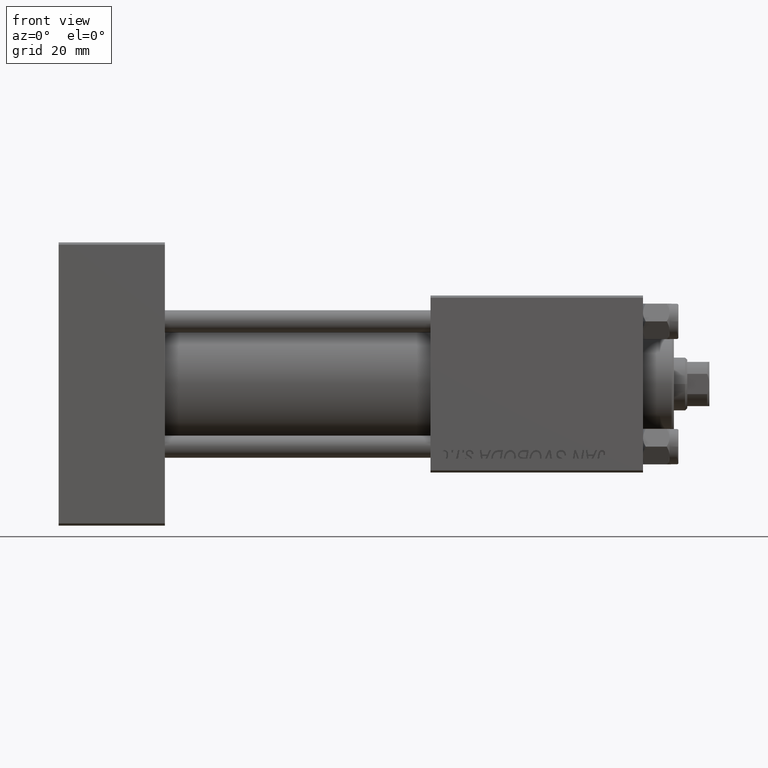
[diagram: clean part render]
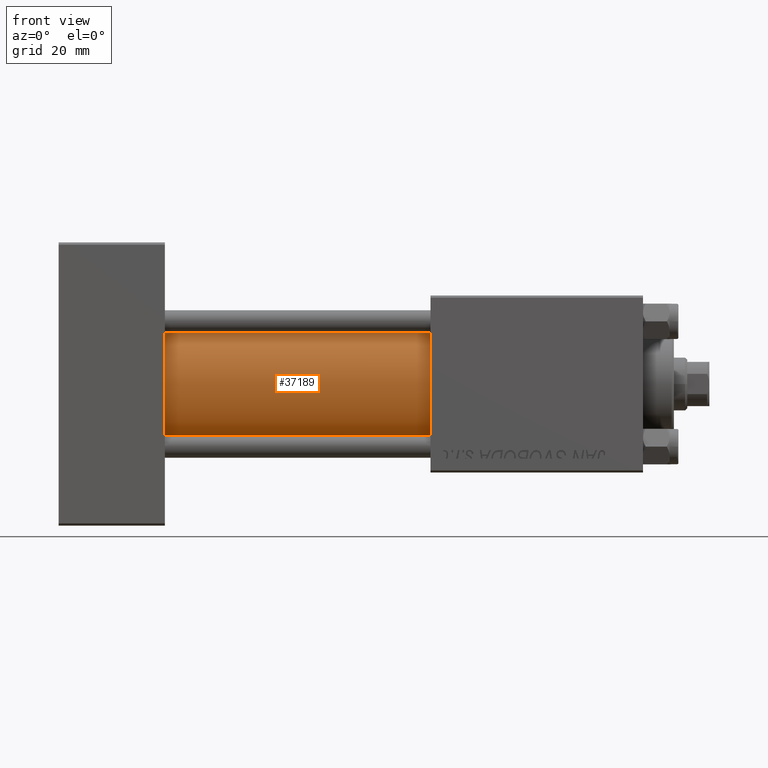
[diagram: same view with one face highlighted and labeled with its STEP entity id]
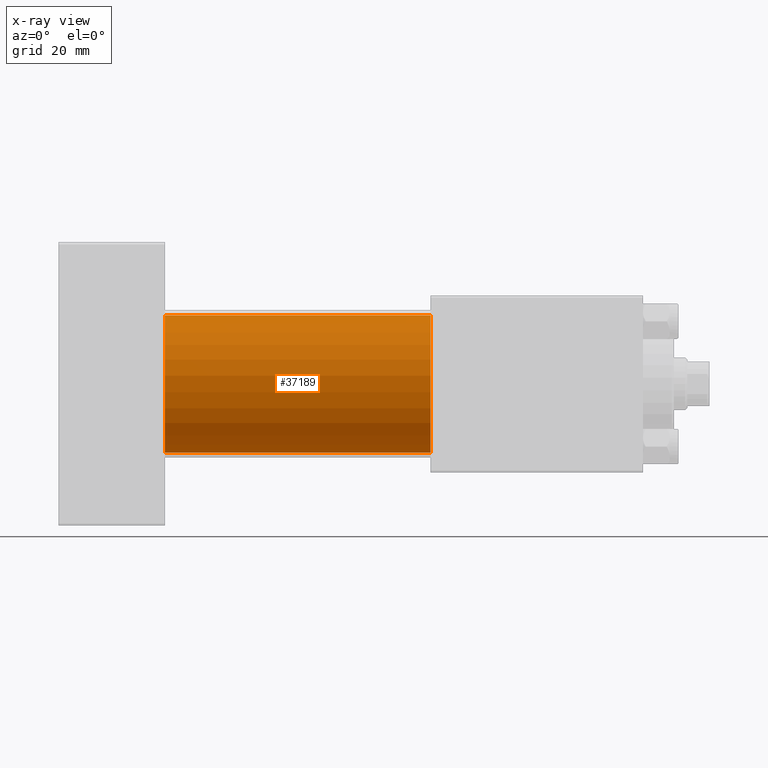
[diagram: x-ray of the same camera — body ghosted, the highlighted face saturated]
A machine part, front view. The second image highlights one B-rep face of the part: STEP entity #37189.
The next image is the same camera in x-ray: the body ghosted, the highlighted face saturated — about 0% of this face is hidden behind the body in this view.
In plain terms, the highlighted cylindrical surface (partial cylindrical patch) has radius 15.5 mm, axis along (-1, -0, -0).
Its self-contained STEP definition (entity closure, byte-faithful):
#466 = CARTESIAN_POINT ( 'NONE',  ( 24.00000000000000000, -7.038826752868131828E-16, -15.50000000000000000 ) ) ;
#2585 = EDGE_CURVE ( 'NONE', #17569, #10951, #32724, .T. ) ;
#3660 = EDGE_LOOP ( 'NONE', ( #43843, #20130, #20628, #49598 ) ) ;
#3684 = DIRECTION ( 'NONE',  ( 0.000000000000000000, 0.000000000000000000, 1.000000000000000000 ) ) ;
#4546 = DIRECTION ( 'NONE',  ( -1.000000000000000000, -0.000000000000000000, -0.000000000000000000 ) ) ;
#9027 = DIRECTION ( 'NONE',  ( 0.000000000000000000, 0.000000000000000000, 1.000000000000000000 ) ) ;
#9893 = EDGE_CURVE ( 'NONE', #17569, #15387, #35372, .T. ) ;
#10951 = VERTEX_POINT ( 'NONE', #15373 ) ;
#12273 = FACE_OUTER_BOUND ( 'NONE', #3660, .T. ) ;
#12911 = AXIS2_PLACEMENT_3D ( 'NONE', #46092, #42796, #3684 ) ;
#12975 = DIRECTION ( 'NONE',  ( 1.000000000000000000, 0.000000000000000000, 0.000000000000000000 ) ) ;
#13800 = CARTESIAN_POINT ( 'NONE',  ( 24.00000000000000000, -2.602085213965210642E-15, 0.000000000000000000 ) ) ;
#14181 = AXIS2_PLACEMENT_3D ( 'NONE', #28877, #12975, #43761 ) ;
#14846 = EDGE_CURVE ( 'NONE', #15387, #49853, #41051, .T. ) ;
#15373 = CARTESIAN_POINT ( 'NONE',  ( 83.99999999999998579, -7.038826752868131828E-16, -15.50000000000000000 ) ) ;
#15387 = VERTEX_POINT ( 'NONE', #42240 ) ;
#15931 = DIRECTION ( 'NONE',  ( -1.000000000000000000, -0.000000000000000000, -0.000000000000000000 ) ) ;
#17569 = VERTEX_POINT ( 'NONE', #26256 ) ;
#19214 = LINE ( 'NONE', #34621, #44467 ) ;
#19602 = CYLINDRICAL_SURFACE ( 'NONE', #12911, 15.50000000000000000 ) ;
#20130 = ORIENTED_EDGE ( 'NONE', *, *, #2585, .F. ) ;
#20628 = ORIENTED_EDGE ( 'NONE', *, *, #9893, .T. ) ;
#26256 = CARTESIAN_POINT ( 'NONE',  ( 83.99999999999998579, -2.602085213965210642E-15, 15.50000000000000000 ) ) ;
#26821 = CARTESIAN_POINT ( 'NONE',  ( 83.99999999999998579, -2.602085213965210642E-15, 15.50000000000000000 ) ) ;
#28877 = CARTESIAN_POINT ( 'NONE',  ( 83.99999999999998579, -2.602085213965210642E-15, 0.000000000000000000 ) ) ;
#29214 = DIRECTION ( 'NONE',  ( 1.000000000000000000, 0.000000000000000000, 0.000000000000000000 ) ) ;
#32724 = CIRCLE ( 'NONE', #14181, 15.50000000000000000 ) ;
#34621 = CARTESIAN_POINT ( 'NONE',  ( 83.99999999999998579, -7.038826752868131828E-16, -15.50000000000000000 ) ) ;
#35372 = LINE ( 'NONE', #26821, #42598 ) ;
#37189 = ADVANCED_FACE ( 'NONE', ( #12273 ), #19602, .T. ) ;
#41051 = CIRCLE ( 'NONE', #44269, 15.50000000000000000 ) ;
#42240 = CARTESIAN_POINT ( 'NONE',  ( 24.00000000000000000, -2.602085213965210642E-15, 15.50000000000000000 ) ) ;
#42598 = VECTOR ( 'NONE', #15931, 1000.000000000000000 ) ;
#42796 = DIRECTION ( 'NONE',  ( -1.000000000000000000, -0.000000000000000000, -0.000000000000000000 ) ) ;
#43761 = DIRECTION ( 'NONE',  ( 0.000000000000000000, 0.000000000000000000, -1.000000000000000000 ) ) ;
#43843 = ORIENTED_EDGE ( 'NONE', *, *, #44192, .F. ) ;
#44192 = EDGE_CURVE ( 'NONE', #10951, #49853, #19214, .T. ) ;
#44269 = AXIS2_PLACEMENT_3D ( 'NONE', #13800, #29214, #9027 ) ;
#44467 = VECTOR ( 'NONE', #4546, 1000.000000000000000 ) ;
#46092 = CARTESIAN_POINT ( 'NONE',  ( 83.99999999999998579, -2.602085213965210642E-15, 0.000000000000000000 ) ) ;
#49598 = ORIENTED_EDGE ( 'NONE', *, *, #14846, .T. ) ;
#49853 = VERTEX_POINT ( 'NONE', #466 ) ;